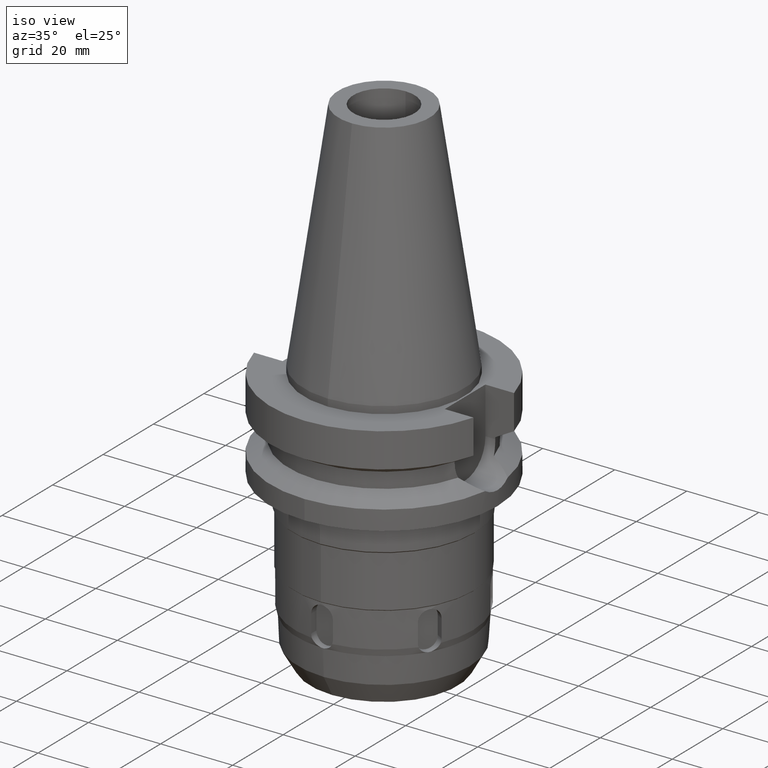
[diagram: clean part render]
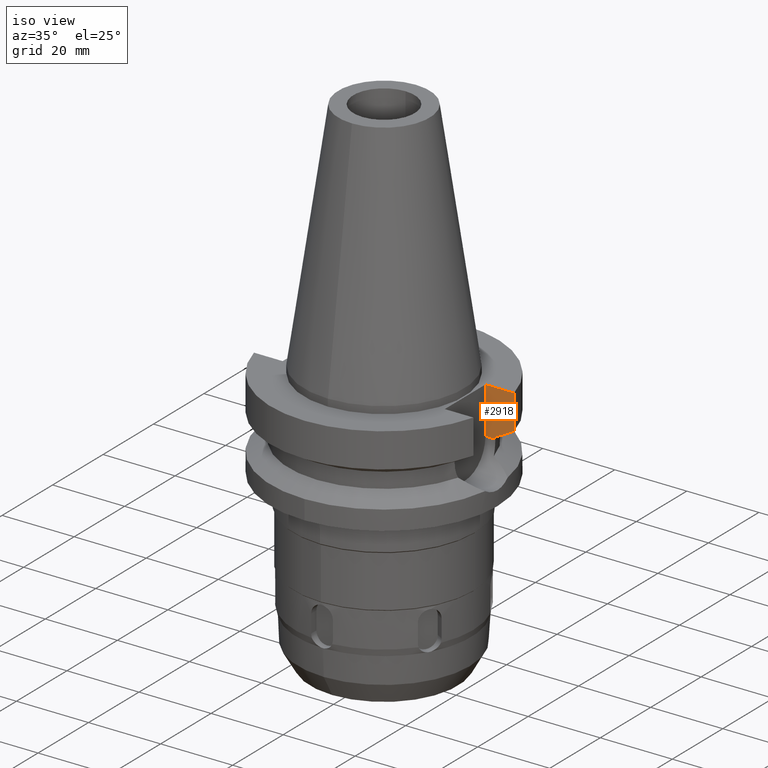
[diagram: same view with one face highlighted and labeled with its STEP entity id]
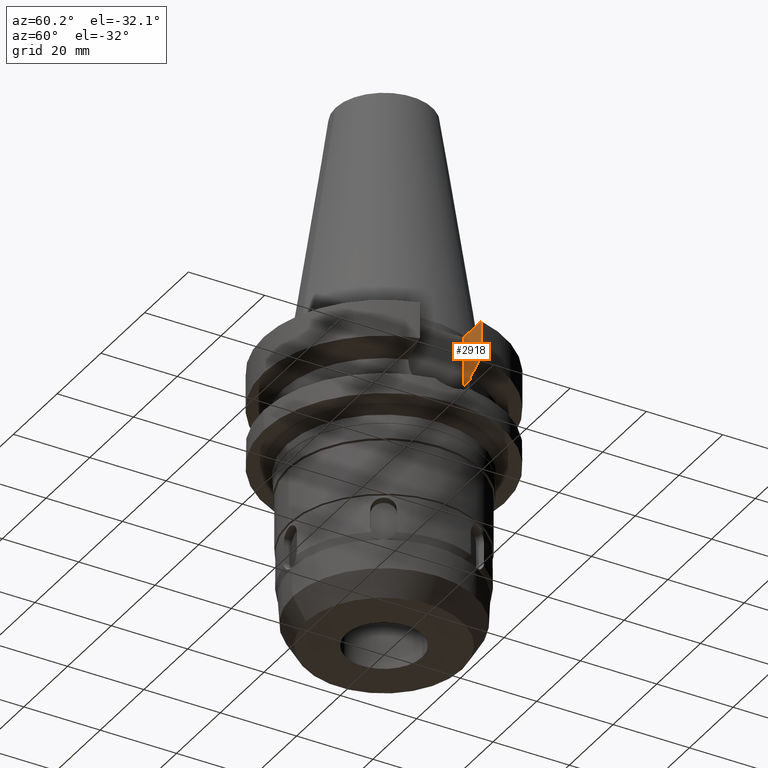
[diagram: same view with one face highlighted and labeled with its STEP entity id]
A machine part, iso view. The second image highlights one B-rep face of the part: STEP entity #2918.
A second angle (auxiliary view) of the same face is appended — the face is thin or edge-on in the first view.
In plain terms, the highlighted planar face has unit normal (0, 1, 0).
Its self-contained STEP definition (entity closure, byte-faithful):
#307=DIRECTION('',(0.E0,0.E0,-1.E0));
#308=VECTOR('',#307,1.295E1);
#309=CARTESIAN_POINT('',(2.25E1,8.05E0,-2.E0));
#310=LINE('',#309,#308);
#337=DIRECTION('',(1.E0,-3.506251283226E-14,0.E0));
#338=VECTOR('',#337,7.954022722788E0);
#339=CARTESIAN_POINT('',(2.25E1,8.05E0,-2.E0));
#340=LINE('',#339,#338);
#344=CARTESIAN_POINT('',(3.045402291450E1,8.049999274731E0,-1.156551218501E1));
#345=CARTESIAN_POINT('',(2.987645776225E1,8.049999274731E0,-1.188789692503E1));
#346=CARTESIAN_POINT('',(2.872091170794E1,8.049999726159E0,-1.253193799238E1));
#347=CARTESIAN_POINT('',(2.698538636477E1,8.050002046348E0,-1.349404291468E1));
#348=CARTESIAN_POINT('',(2.582730534496E1,8.049995407748E0,-1.413348344881E1));
#349=CARTESIAN_POINT('',(2.524772413378E1,8.049995407748E0,-1.445229208941E1));
#381=DIRECTION('',(2.941877288525E-6,-9.226801097963E-6,9.999999999531E-1));
#382=VECTOR('',#381,4.977079106104E-1);
#383=CARTESIAN_POINT('',(2.524772266958E1,8.05E0,-1.495E1));
#384=LINE('',#383,#382);
#437=DIRECTION('',(-2.004196717214E-8,7.582119821450E-8,1.E0));
#438=VECTOR('',#437,9.565512185011E0);
#439=CARTESIAN_POINT('',(3.045402291450E1,8.049999274731E0,-1.156551218501E1));
#440=LINE('',#439,#438);
#531=DIRECTION('',(1.E0,-1.551559937893E-14,0.E0));
#532=VECTOR('',#531,2.747722669580E0);
#533=CARTESIAN_POINT('',(2.25E1,8.05E0,-1.495E1));
#534=LINE('',#533,#532);
#2565=CARTESIAN_POINT('',(2.25E1,8.05E0,-1.495E1));
#2566=VERTEX_POINT('',#2565);
#2567=CARTESIAN_POINT('',(2.524772266958E1,8.05E0,-1.495E1));
#2568=VERTEX_POINT('',#2567);
#2595=CARTESIAN_POINT('',(2.524772413378E1,8.049995407748E0,-1.445229208941E1));
#2596=VERTEX_POINT('',#2595);
#2610=CARTESIAN_POINT('',(3.045402272279E1,8.05E0,-2.E0));
#2612=VERTEX_POINT('',#2610);
#2613=CARTESIAN_POINT('',(2.25E1,8.05E0,-2.E0));
#2614=VERTEX_POINT('',#2613);
#2634=VERTEX_POINT('',#344);
#2901=CARTESIAN_POINT('',(2.25E1,8.05E0,-1.495E1));
#2902=DIRECTION('',(0.E0,1.E0,0.E0));
#2903=DIRECTION('',(0.E0,0.E0,1.E0));
#2904=AXIS2_PLACEMENT_3D('',#2901,#2902,#2903);
#2905=PLANE('',#2904);
#2907=ORIENTED_EDGE('',*,*,#2906,.F.);
#2909=ORIENTED_EDGE('',*,*,#2908,.F.);
#2910=ORIENTED_EDGE('',*,*,#2891,.F.);
#2911=ORIENTED_EDGE('',*,*,#2760,.T.);
#2913=ORIENTED_EDGE('',*,*,#2912,.F.);
#2915=ORIENTED_EDGE('',*,*,#2914,.T.);
#2916=EDGE_LOOP('',(#2907,#2909,#2910,#2911,#2913,#2915));
#2917=FACE_OUTER_BOUND('',#2916,.F.);
#350=B_SPLINE_CURVE_WITH_KNOTS('',3,(#344,#345,#346,#347,#348,#349),
.UNSPECIFIED.,.F.,.F.,(4,1,1,4),(0.E0,3.333333333333E-1,6.666666666667E-1,1.E0),
.UNSPECIFIED.);
#2760=EDGE_CURVE('',#2614,#2612,#340,.T.);
#2891=EDGE_CURVE('',#2614,#2566,#310,.T.);
#2906=EDGE_CURVE('',#2568,#2596,#384,.T.);
#2908=EDGE_CURVE('',#2566,#2568,#534,.T.);
#2912=EDGE_CURVE('',#2634,#2612,#440,.T.);
#2914=EDGE_CURVE('',#2634,#2596,#350,.T.);
#2918=ADVANCED_FACE('',(#2917),#2905,.F.);